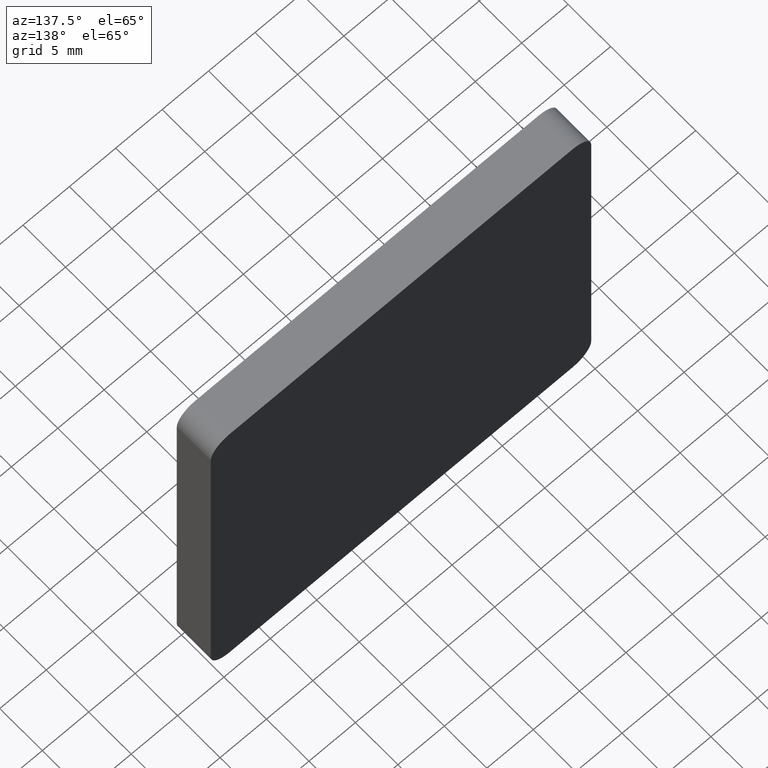
[diagram: clean part render]
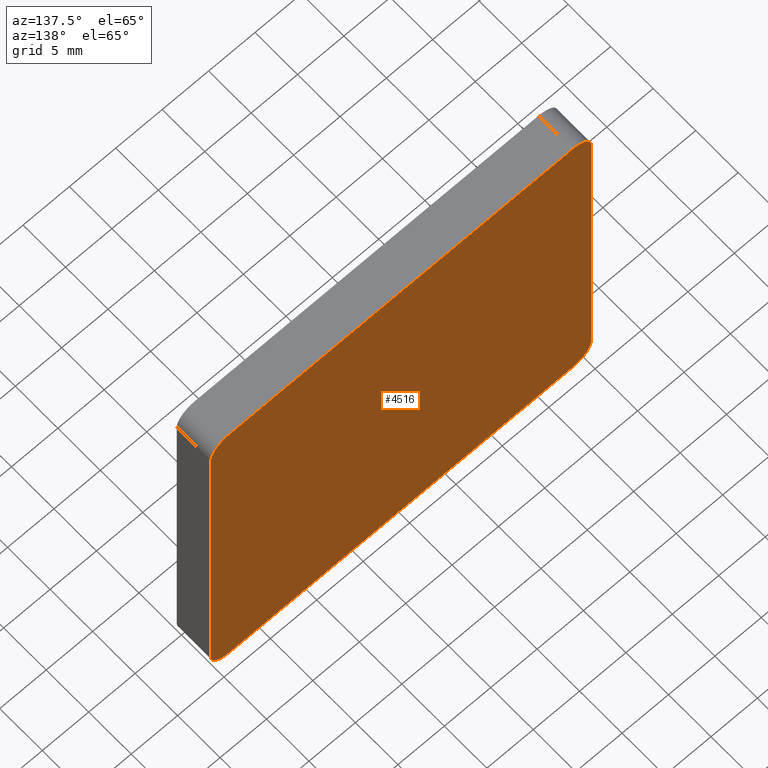
[diagram: same view with one face highlighted and labeled with its STEP entity id]
A machine part, auxiliary view. The second image highlights one B-rep face of the part: STEP entity #4516.
In plain terms, the highlighted planar face has unit normal (0, 1, 0).
Its self-contained STEP definition (entity closure, byte-faithful):
#3 = EDGE_CURVE ( 'NONE', #3946, #9686, #14090, .T. ) ;
#15 = EDGE_CURVE ( 'NONE', #8926, #12676, #6068, .T. ) ;
#288 = CARTESIAN_POINT ( 'NONE',  ( 18.50000000000000355, 4.000000000000000000, 18.50000000000000355 ) ) ;
#446 = DIRECTION ( 'NONE',  ( 0.000000000000000000, 0.000000000000000000, 1.000000000000000000 ) ) ;
#546 = CARTESIAN_POINT ( 'NONE',  ( -18.49999999999999645, 4.000000000000000000, 18.50000000000000355 ) ) ;
#598 = ORIENTED_EDGE ( 'NONE', *, *, #11160, .T. ) ;
#1014 = AXIS2_PLACEMENT_3D ( 'NONE', #546, #4002, #8689 ) ;
#1495 = DIRECTION ( 'NONE',  ( 0.000000000000000000, 0.000000000000000000, 1.000000000000000000 ) ) ;
#2051 = DIRECTION ( 'NONE',  ( -1.692413147294445970E-16, -0.000000000000000000, -1.000000000000000000 ) ) ;
#2301 = CARTESIAN_POINT ( 'NONE',  ( -20.49999999999999645, 4.000000000000000000, 18.50000000000000355 ) ) ;
#2435 = DIRECTION ( 'NONE',  ( 0.000000000000000000, 0.000000000000000000, 1.000000000000000000 ) ) ;
#2556 = CARTESIAN_POINT ( 'NONE',  ( 18.50000000000000355, 4.000000000000000000, 20.50000000000000355 ) ) ;
#2873 = ORIENTED_EDGE ( 'NONE', *, *, #9797, .T. ) ;
#2941 = ORIENTED_EDGE ( 'NONE', *, *, #10746, .T. ) ;
#2988 = CARTESIAN_POINT ( 'NONE',  ( -18.49999999999999645, 4.000000000000000000, 20.50000000000000355 ) ) ;
#3946 = VERTEX_POINT ( 'NONE', #2556 ) ;
#4002 = DIRECTION ( 'NONE',  ( 0.000000000000000000, 1.000000000000000000, 0.000000000000000000 ) ) ;
#4026 = CIRCLE ( 'NONE', #1014, 2.000000000000001776 ) ;
#4178 = CARTESIAN_POINT ( 'NONE',  ( 0.000000000000000000, 4.000000000000000000, 0.000000000000000000 ) ) ;
#4516 = ADVANCED_FACE ( 'NONE', ( #14588 ), #5220, .T. ) ;
#4524 = CIRCLE ( 'NONE', #9434, 2.000000000000001776 ) ;
#4822 = DIRECTION ( 'NONE',  ( 0.000000000000000000, 1.000000000000000000, 0.000000000000000000 ) ) ;
#5109 = VECTOR ( 'NONE', #2051, 1000.000000000000000 ) ;
#5220 = PLANE ( 'NONE',  #7283 ) ;
#5893 = CARTESIAN_POINT ( 'NONE',  ( -20.50000000000000355, 4.000000000000000000, -20.49999999999999645 ) ) ;
#5942 = EDGE_CURVE ( 'NONE', #13920, #12600, #4524, .T. ) ;
#6068 = LINE ( 'NONE', #5893, #6262 ) ;
#6191 = LINE ( 'NONE', #11787, #14754 ) ;
#6192 = DIRECTION ( 'NONE',  ( 1.692413147294445970E-16, 0.000000000000000000, 1.000000000000000000 ) ) ;
#6262 = VECTOR ( 'NONE', #6192, 1000.000000000000000 ) ;
#6336 = CARTESIAN_POINT ( 'NONE',  ( -18.50000000000000355, 4.000000000000000000, -20.49999999999999645 ) ) ;
#6377 = DIRECTION ( 'NONE',  ( 0.000000000000000000, -0.000000000000000000, 1.000000000000000000 ) ) ;
#6481 = CARTESIAN_POINT ( 'NONE',  ( -20.50000000000000355, 4.000000000000000000, -20.49999999999999645 ) ) ;
#7084 = DIRECTION ( 'NONE',  ( 0.000000000000000000, 1.000000000000000000, 0.000000000000000000 ) ) ;
#7283 = AXIS2_PLACEMENT_3D ( 'NONE', #4178, #8821, #6377 ) ;
#7434 = EDGE_CURVE ( 'NONE', #12676, #11505, #4026, .T. ) ;
#7748 = ORIENTED_EDGE ( 'NONE', *, *, #7434, .T. ) ;
#8021 = EDGE_LOOP ( 'NONE', ( #12613, #7748, #14969, #13839, #2941, #11677, #598, #2873 ) ) ;
#8025 = LINE ( 'NONE', #6481, #10941 ) ;
#8689 = DIRECTION ( 'NONE',  ( 0.000000000000000000, 0.000000000000000000, 1.000000000000000000 ) ) ;
#8821 = DIRECTION ( 'NONE',  ( 0.000000000000000000, 1.000000000000000000, 0.000000000000000000 ) ) ;
#8830 = CARTESIAN_POINT ( 'NONE',  ( 20.49999999999999645, 4.000000000000000000, -20.49999999999999645 ) ) ;
#8926 = VERTEX_POINT ( 'NONE', #10906 ) ;
#9122 = AXIS2_PLACEMENT_3D ( 'NONE', #288, #12819, #1495 ) ;
#9434 = AXIS2_PLACEMENT_3D ( 'NONE', #14014, #7084, #2435 ) ;
#9686 = VERTEX_POINT ( 'NONE', #11786 ) ;
#9797 = EDGE_CURVE ( 'NONE', #11869, #8926, #11504, .T. ) ;
#10243 = CARTESIAN_POINT ( 'NONE',  ( 18.49999999999999645, 4.000000000000000000, -20.49999999999999645 ) ) ;
#10746 = EDGE_CURVE ( 'NONE', #9686, #13920, #13517, .T. ) ;
#10906 = CARTESIAN_POINT ( 'NONE',  ( -20.50000000000000355, 4.000000000000000000, -18.49999999999999645 ) ) ;
#10941 = VECTOR ( 'NONE', #13317, 1000.000000000000000 ) ;
#11160 = EDGE_CURVE ( 'NONE', #12600, #11869, #8025, .T. ) ;
#11235 = CARTESIAN_POINT ( 'NONE',  ( 20.49999999999999645, 4.000000000000000000, -18.49999999999999645 ) ) ;
#11505 = VERTEX_POINT ( 'NONE', #2988 ) ;
#11504 = CIRCLE ( 'NONE', #12089, 2.000000000000001776 ) ;
#11677 = ORIENTED_EDGE ( 'NONE', *, *, #5942, .T. ) ;
#11786 = CARTESIAN_POINT ( 'NONE',  ( 20.50000000000000355, 4.000000000000000000, 18.50000000000000355 ) ) ;
#11787 = CARTESIAN_POINT ( 'NONE',  ( -20.49999999999999645, 4.000000000000000000, 20.50000000000000355 ) ) ;
#11869 = VERTEX_POINT ( 'NONE', #6336 ) ;
#12089 = AXIS2_PLACEMENT_3D ( 'NONE', #14951, #4822, #446 ) ;
#12600 = VERTEX_POINT ( 'NONE', #10243 ) ;
#12613 = ORIENTED_EDGE ( 'NONE', *, *, #15, .T. ) ;
#12676 = VERTEX_POINT ( 'NONE', #2301 ) ;
#12819 = DIRECTION ( 'NONE',  ( 0.000000000000000000, 1.000000000000000000, 0.000000000000000000 ) ) ;
#13156 = EDGE_CURVE ( 'NONE', #11505, #3946, #6191, .T. ) ;
#13317 = DIRECTION ( 'NONE',  ( -1.000000000000000000, -0.000000000000000000, -0.000000000000000000 ) ) ;
#13517 = LINE ( 'NONE', #8830, #5109 ) ;
#13839 = ORIENTED_EDGE ( 'NONE', *, *, #3, .T. ) ;
#13920 = VERTEX_POINT ( 'NONE', #11235 ) ;
#14014 = CARTESIAN_POINT ( 'NONE',  ( 18.49999999999999645, 4.000000000000000000, -18.49999999999999645 ) ) ;
#14087 = DIRECTION ( 'NONE',  ( 1.000000000000000000, 0.000000000000000000, 0.000000000000000000 ) ) ;
#14090 = CIRCLE ( 'NONE', #9122, 2.000000000000001776 ) ;
#14588 = FACE_OUTER_BOUND ( 'NONE', #8021, .T. ) ;
#14754 = VECTOR ( 'NONE', #14087, 1000.000000000000000 ) ;
#14951 = CARTESIAN_POINT ( 'NONE',  ( -18.50000000000000355, 4.000000000000000000, -18.49999999999999645 ) ) ;
#14969 = ORIENTED_EDGE ( 'NONE', *, *, #13156, .T. ) ;